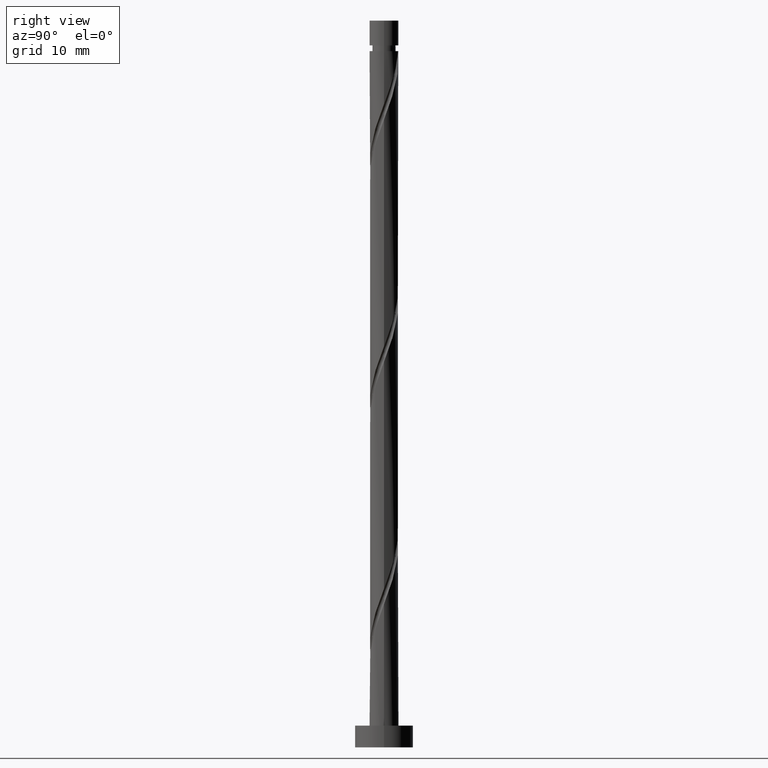
[diagram: clean part render]
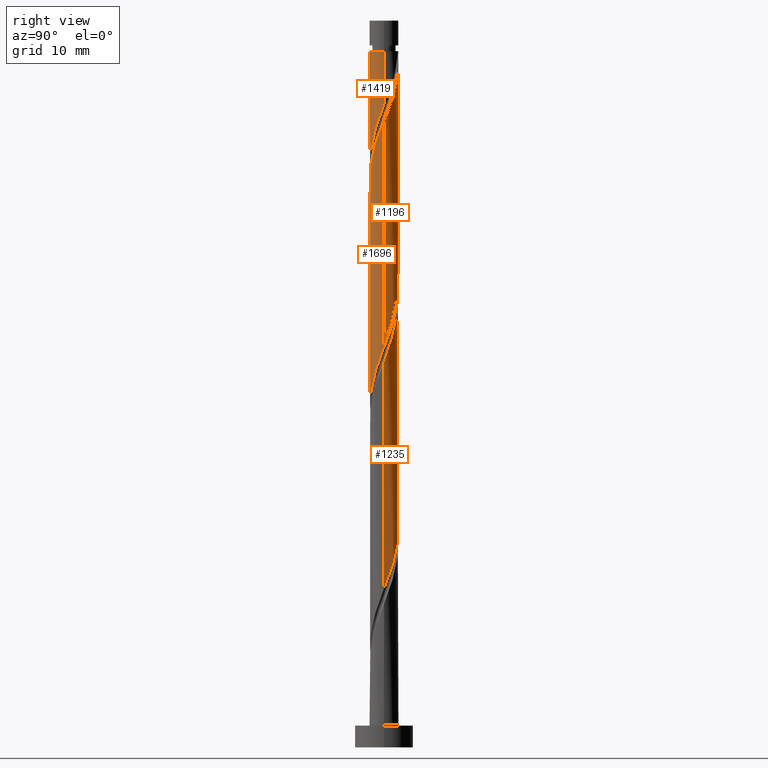
[diagram: same view with one multi-face feature highlighted, each face labeled with its STEP entity id]
A machine part, right view. The highlighted faces form ONE feature: a constant-radius fillet chain: 4 tangent blend faces with common blend radius 2 mm. The faces share edges in the B-rep.
Their STEP definitions:
[1] entity #1196 (Cylinder):
#26 = CARTESIAN_POINT ( 'NONE',  ( 1.672808912829666816, 1.127404036555501810, 89.54224661886334502 ) ) ;
#30 = VECTOR ( 'NONE', #1201, 1000.000000000000000 ) ;
#37 = CARTESIAN_POINT ( 'NONE',  ( -1.498412303996175643, 1.324673758792281664, 68.01446884108553093 ) ) ;
#52 = ORIENTED_EDGE ( 'NONE', *, *, #2171, .T. ) ;
#154 = ORIENTED_EDGE ( 'NONE', *, *, #562, .F. ) ;
#181 = CARTESIAN_POINT ( 'NONE',  ( -1.104504345536227339, 1.667354236715039129, 66.62557995219664519 ) ) ;
#185 = CARTESIAN_POINT ( 'NONE',  ( 1.790205940182201250, 0.8917189533347223973, 88.84780217441888794 ) ) ;
#257 = DIRECTION ( 'NONE',  ( -0.000000000000000000, -0.000000000000000000, -1.000000000000000000 ) ) ;
#277 = CARTESIAN_POINT ( 'NONE',  ( 1.127404036555502032, 1.672808912829662153, 60.37557995219666651 ) ) ;
#281 = VERTEX_POINT ( 'NONE', #1345 ) ;
#294 = CARTESIAN_POINT ( 'NONE',  ( 1.996223298870949403, 0.1228517034671582214, 55.51446884108553093 ) ) ;
#327 = CARTESIAN_POINT ( 'NONE',  ( 2.000000000000003997, 0.2010075630518381451, 86.92877299950919223 ) ) ;
#333 = CARTESIAN_POINT ( 'NONE',  ( -0.3856594865056701682, 1.980049565276632118, 64.54224661886333081 ) ) ;
#358 = CARTESIAN_POINT ( 'NONE',  ( -2.000000000000000000, 9.719959888353233432E-16, 71.85581327407338392 ) ) ;
#362 = CARTESIAN_POINT ( 'NONE',  ( 1.104504345536230003, 1.667354236715040683, 91.62557995219665941 ) ) ;
#366 = EDGE_CURVE ( 'NONE', #1438, #1998, #1549, .T. ) ;
#463 = CARTESIAN_POINT ( 'NONE',  ( -0.3979949748426477862, 1.960000000000003739, 95.79224661886335923 ) ) ;
#473 = CARTESIAN_POINT ( 'NONE',  ( -0.1228517034671590819, 1.996223298870949403, 63.84780217441886663 ) ) ;
#506 = CARTESIAN_POINT ( 'NONE',  ( 2.000000000000002665, 1.585101151023747839E-15, 86.39534663031993489 ) ) ;
#526 = EDGE_CURVE ( 'NONE', #1085, #599, #832, .T. ) ;
#527 = CARTESIAN_POINT ( 'NONE',  ( 0.8849929959097692089, 1.812764992401018072, 92.32002439664111648 ) ) ;
#534 = DIRECTION ( 'NONE',  ( -0.000000000000000000, -0.000000000000000000, -1.000000000000000000 ) ) ;
#562 = EDGE_CURVE ( 'NONE', #1998, #281, #1356, .T. ) ;
#599 = VERTEX_POINT ( 'NONE', #463 ) ;
#611 = CARTESIAN_POINT ( 'NONE',  ( 0.8917189533347235075, 1.790205940182197031, 61.07002439664109517 ) ) ;
#652 = CARTESIAN_POINT ( 'NONE',  ( 1.980049565276632118, 0.3856594865056690580, 56.20891328552999511 ) ) ;
#680 = CARTESIAN_POINT ( 'NONE',  ( 0.1228517034671612468, 1.996223298870952290, 94.40335772997443087 ) ) ;
#694 = LINE ( 'NONE', #1370, #30 ) ;
#702 = CARTESIAN_POINT ( 'NONE',  ( 1.498412303996179418, 1.324673758792282330, 90.23669106330775946 ) ) ;
#723 = DIRECTION ( 'NONE',  ( -0.000000000000000000, -0.000000000000000000, -1.000000000000000000 ) ) ;
#758 = CARTESIAN_POINT ( 'NONE',  ( 0.000000000000000000, 0.000000000000000000, 100.0000000000000000 ) ) ;
#832 =( BOUNDED_CURVE ( )  B_SPLINE_CURVE ( 2, ( #506, #327, #1723, #1014, #185, #26, #702, #2053, #362, #527, #1219, #1049, #680, #1896, #1874 ),
 .UNSPECIFIED., .F., .T. ) 
 B_SPLINE_CURVE_WITH_KNOTS ( ( 3, 2, 2, 2, 2, 2, 2, 3 ),
 ( 0.6795317669814461281, 0.6875000000000000000, 0.6979166666666667407, 0.7083333333333332593, 0.7187500000000001110, 0.7291666666666668517, 0.7395833333333333703, 0.7500000000000001110 ),
 .UNSPECIFIED. ) 
 CURVE ( )  GEOMETRIC_REPRESENTATION_ITEM ( )  RATIONAL_B_SPLINE_CURVE ( ( 0.9062941362546338420, 0.9031415850403379242, 0.9090909090909135015, 0.9013135103398318693, 0.9090909090909135015, 0.9013135103398318693, 0.9090909090909135015, 0.9013135103398318693, 0.9090909090909135015, 0.9013135103398318693, 0.9090909090909135015, 0.9013135103398318693, 0.9090909090909135015, 0.9013135103398318693, 0.9090909090909135015 ) ) 
 REPRESENTATION_ITEM ( '' )  );
#836 = EDGE_CURVE ( 'NONE', #1085, #281, #694, .T. ) ;
#855 = CARTESIAN_POINT ( 'NONE',  ( -2.000000000000000000, 0.000000000000000000, 100.0000000000000000 ) ) ;
#940 = DIRECTION ( 'NONE',  ( -1.000000000000000000, 0.000000000000000000, 0.000000000000000000 ) ) ;
#983 = CARTESIAN_POINT ( 'NONE',  ( 1.667354236715039351, 1.104504345536226895, 58.29224661886330949 ) ) ;
#1008 = CARTESIAN_POINT ( 'NONE',  ( 0.000000000000000000, 0.000000000000000000, 95.79224661886331660 ) ) ;
#1014 = CARTESIAN_POINT ( 'NONE',  ( 1.907602967534736571, 0.6560338701139438733, 88.15335772997445929 ) ) ;
#1021 = CARTESIAN_POINT ( 'NONE',  ( -1.672808912829663042, 1.127404036555501143, 68.70891328552998800 ) ) ;
#1030 = DIRECTION ( 'NONE',  ( -1.000000000000000000, 0.000000000000000000, 0.000000000000000000 ) ) ;
#1032 = CARTESIAN_POINT ( 'NONE',  ( -1.959999999999999520, 0.3979949748426478973, 70.79224661886333081 ) ) ;
#1037 = ORIENTED_EDGE ( 'NONE', *, *, #366, .F. ) ;
#1044 = CARTESIAN_POINT ( 'NONE',  ( -0.8849929959097663223, 1.812764992401015407, 65.93113550775220233 ) ) ;
#1049 = CARTESIAN_POINT ( 'NONE',  ( 0.3856594865056725552, 1.980049565276634560, 93.70891328552998800 ) ) ;
#1077 = CARTESIAN_POINT ( 'NONE',  ( -2.000000000000000000, 9.719959888353233432E-16, 71.85581327407338392 ) ) ;
#1085 = VERTEX_POINT ( 'NONE', #1749 ) ;
#1129 = CARTESIAN_POINT ( 'NONE',  ( 1.521943481029062406, 1.324015695162688022, 58.98669106330774525 ) ) ;
#1184 = CARTESIAN_POINT ( 'NONE',  ( -1.999999999999999112, 0.2010075630518458611, 71.32238690488409816 ) ) ;
#1196 = ADVANCED_FACE ( 'NONE', ( #1619 ), #1579, .T. ) ;
#1201 = DIRECTION ( 'NONE',  ( -0.000000000000000000, -0.000000000000000000, -1.000000000000000000 ) ) ;
#1219 = CARTESIAN_POINT ( 'NONE',  ( 0.6353262412077205212, 1.896407278838825761, 93.01446884108554514 ) ) ;
#1274 = VECTOR ( 'NONE', #723, 1000.000000000000000 ) ;
#1344 = AXIS2_PLACEMENT_3D ( 'NONE', #1008, #534, #1030 ) ;
#1345 = CARTESIAN_POINT ( 'NONE',  ( 2.000000000000000000, -2.138391175437711907E-15, 55.18914660740670541 ) ) ;
#1356 =( BOUNDED_CURVE ( )  B_SPLINE_CURVE ( 2, ( #358, #1184, #1032, #1864, #1526, #1021, #37, #1719, #181, #1044, #1570, #333, #473, #1665, #1684, #1480, #611, #277, #2150, #1129, #983, #2008, #1653, #652, #294, #1984, #1974 ),
 .UNSPECIFIED., .F., .T. ) 
 B_SPLINE_CURVE_WITH_KNOTS ( ( 3, 2, 2, 2, 2, 2, 2, 2, 2, 2, 2, 2, 2, 3 ),
 ( 0.4295317669814464057, 0.4375000000000000000, 0.4479166666666666852, 0.4583333333333333148, 0.4687500000000000000, 0.4791666666666666852, 0.4895833333333333148, 0.5000000000000000000, 0.5104166666666666297, 0.5208333333333333703, 0.5312500000000000000, 0.5416666666666666297, 0.5520833333333333703, 0.5545317669814463502 ),
 .UNSPECIFIED. ) 
 CURVE ( )  GEOMETRIC_REPRESENTATION_ITEM ( )  RATIONAL_B_SPLINE_CURVE ( ( 0.9062941362546279578, 0.9031415850403323731, 0.9090909090909075063, 0.9013135103398259851, 0.9090909090909075063, 0.9013135103398259851, 0.9090909090909075063, 0.9013135103398259851, 0.9090909090909075063, 0.9013135103398259851, 0.9090909090909075063, 0.9013135103398259851, 0.9090909090909075063, 0.9013135103398259851, 0.9090909090909075063, 0.9013135103398259851, 0.9090909090909075063, 0.9013135103398259851, 0.9090909090909075063, 0.9013135103398259851, 0.9090909090909075063, 0.9013135103398259851, 0.9090909090909075063, 0.9013135103398259851, 0.9090909090909075063, 0.9072628343904012294, 0.9062941362546277357 ) ) 
 REPRESENTATION_ITEM ( '' )  );
#1370 = CARTESIAN_POINT ( 'NONE',  ( 2.000000000000000000, 2.449293598294705921E-16, 100.0000000000000000 ) ) ;
#1438 = VERTEX_POINT ( 'NONE', #1994 ) ;
#1463 = EDGE_LOOP ( 'NONE', ( #1761, #1498, #154, #1037, #52 ) ) ;
#1480 = CARTESIAN_POINT ( 'NONE',  ( 0.6560338701139456496, 1.907602967534731464, 61.76446884108553093 ) ) ;
#1498 = ORIENTED_EDGE ( 'NONE', *, *, #836, .T. ) ;
#1526 = CARTESIAN_POINT ( 'NONE',  ( -1.790205940182197475, 0.8917189533347226194, 69.40335772997441666 ) ) ;
#1549 = LINE ( 'NONE', #855, #1274 ) ;
#1570 = CARTESIAN_POINT ( 'NONE',  ( -0.6353262412077180787, 1.896407278838823762, 65.23669106330774525 ) ) ;
#1579 = CYLINDRICAL_SURFACE ( 'NONE', #2119, 2.000000000000000000 ) ;
#1619 = FACE_OUTER_BOUND ( 'NONE', #1463, .T. ) ;
#1653 = CARTESIAN_POINT ( 'NONE',  ( 1.896407278838823762, 0.6353262412077168575, 56.90335772997442376 ) ) ;
#1665 = CARTESIAN_POINT ( 'NONE',  ( 0.1399560795713520323, 2.012397032465266911, 63.15335772997442376 ) ) ;
#1684 = CARTESIAN_POINT ( 'NONE',  ( 0.3979949748426483414, 1.959999999999999520, 62.45891328552998800 ) ) ;
#1719 = CARTESIAN_POINT ( 'NONE',  ( -1.324015695162688244, 1.521943481029062406, 67.32002439664110227 ) ) ;
#1723 = CARTESIAN_POINT ( 'NONE',  ( 1.960000000000003073, 0.3979949748426477862, 87.45891328552998800 ) ) ;
#1749 = CARTESIAN_POINT ( 'NONE',  ( 2.000000000000002665, 1.585101151023747839E-15, 86.39534663031993489 ) ) ;
#1761 = ORIENTED_EDGE ( 'NONE', *, *, #526, .F. ) ;
#1864 = CARTESIAN_POINT ( 'NONE',  ( -1.907602967534731908, 0.6560338701139436512, 70.09780217441885952 ) ) ;
#1874 = CARTESIAN_POINT ( 'NONE',  ( -0.3979949748426477862, 1.960000000000003739, 95.79224661886335923 ) ) ;
#1896 = CARTESIAN_POINT ( 'NONE',  ( -0.1399560795713526984, 2.012397032465270907, 95.09780217441888794 ) ) ;
#1974 = CARTESIAN_POINT ( 'NONE',  ( 2.000000000000000000, -2.138391175437711907E-15, 55.18914660740670541 ) ) ;
#1984 = CARTESIAN_POINT ( 'NONE',  ( 2.000000000000000000, 0.06148390331534540898, 55.35231029543485448 ) ) ;
#1994 = CARTESIAN_POINT ( 'NONE',  ( -2.000000000000000888, 0.000000000000000000, 95.79224661886331660 ) ) ;
#1998 = VERTEX_POINT ( 'NONE', #1077 ) ;
#2008 = CARTESIAN_POINT ( 'NONE',  ( 1.812764992401016073, 0.8849929959097645460, 57.59780217441887373 ) ) ;
#2053 = CARTESIAN_POINT ( 'NONE',  ( 1.324015695162692907, 1.521943481029063516, 90.93113550775223075 ) ) ;
#2119 = AXIS2_PLACEMENT_3D ( 'NONE', #758, #257, #940 ) ;
#2150 = CARTESIAN_POINT ( 'NONE',  ( 1.324673758792282108, 1.498412303996175199, 59.68113550775219522 ) ) ;
#2156 = CIRCLE ( 'NONE', #1344, 2.000000000000000888 ) ;
#2171 = EDGE_CURVE ( 'NONE', #1438, #599, #2156, .T. ) ;
[2] entity #1419 (Cylinder):
#16 = VERTEX_POINT ( 'NONE', #318 ) ;
#119 = LINE ( 'NONE', #1162, #1241 ) ;
#149 = CARTESIAN_POINT ( 'NONE',  ( 1.790205940182197031, -0.8917189533347235075, 86.07002439664110227 ) ) ;
#156 = CARTESIAN_POINT ( 'NONE',  ( -1.127404036555501143, -1.672808912829663042, 77.04224661886331660 ) ) ;
#190 = CARTESIAN_POINT ( 'NONE',  ( -1.996223298870949403, -0.1228517034671588737, 72.18113550775220233 ) ) ;
#314 = DIRECTION ( 'NONE',  ( -1.000000000000000000, 0.000000000000000000, 0.000000000000000000 ) ) ;
#318 = CARTESIAN_POINT ( 'NONE',  ( 2.000000000000000888, 2.449293598294706907E-16, 95.79224661886331660 ) ) ;
#324 = CARTESIAN_POINT ( 'NONE',  ( 0.8849929959097655452, -1.812764992401015629, 82.59780217441887373 ) ) ;
#342 = CIRCLE ( 'NONE', #1205, 2.000000000000000888 ) ;
#356 = CARTESIAN_POINT ( 'NONE',  ( -1.896407278838823762, -0.6353262412077178567, 73.57002439664108806 ) ) ;
#366 = EDGE_CURVE ( 'NONE', #1438, #1998, #1549, .T. ) ;
#468 = VERTEX_POINT ( 'NONE', #1392 ) ;
#483 = CARTESIAN_POINT ( 'NONE',  ( -0.1399560795713525874, -2.012397032465267355, 79.82002439664108806 ) ) ;
#603 = EDGE_CURVE ( 'NONE', #16, #468, #119, .T. ) ;
#637 = CARTESIAN_POINT ( 'NONE',  ( 0.000000000000000000, 0.000000000000000000, 100.0000000000000000 ) ) ;
#641 = EDGE_CURVE ( 'NONE', #16, #1438, #342, .T. ) ;
#660 = CARTESIAN_POINT ( 'NONE',  ( 0.3856594865056690580, -1.980049565276632118, 81.20891328552998800 ) ) ;
#723 = DIRECTION ( 'NONE',  ( -0.000000000000000000, -0.000000000000000000, -1.000000000000000000 ) ) ;
#731 = CARTESIAN_POINT ( 'NONE',  ( -1.980049565276632118, -0.3856594865056695021, 72.87557995219664519 ) ) ;
#765 = ORIENTED_EDGE ( 'NONE', *, *, #603, .F. ) ;
#791 = DIRECTION ( 'NONE',  ( -0.000000000000000000, -0.000000000000000000, -1.000000000000000000 ) ) ;
#819 = ORIENTED_EDGE ( 'NONE', *, *, #366, .T. ) ;
#823 = DIRECTION ( 'NONE',  ( -0.000000000000000000, -0.000000000000000000, -1.000000000000000000 ) ) ;
#824 = CARTESIAN_POINT ( 'NONE',  ( 1.498412303996175421, -1.324673758792282108, 84.68113550775218812 ) ) ;
#830 = CYLINDRICAL_SURFACE ( 'NONE', #2181, 2.000000000000000000 ) ;
#833 = CARTESIAN_POINT ( 'NONE',  ( -1.324673758792282108, -1.498412303996175421, 76.34780217441884531 ) ) ;
#840 = CARTESIAN_POINT ( 'NONE',  ( 1.907602967534731464, -0.6560338701139454276, 86.76446884108553093 ) ) ;
#855 = CARTESIAN_POINT ( 'NONE',  ( -2.000000000000000000, 0.000000000000000000, 100.0000000000000000 ) ) ;
#927 = ORIENTED_EDGE ( 'NONE', *, *, #641, .T. ) ;
#966 =( BOUNDED_CURVE ( )  B_SPLINE_CURVE ( 2, ( #995, #1685, #1342, #840, #149, #1504, #824, #1675, #1019, #324, #2167, #660, #1335, #483, #1175, #1004, #1694, #156, #833, #1933, #1544, #1212, #356, #731, #190, #1386, #2059 ),
 .UNSPECIFIED., .F., .T. ) 
 B_SPLINE_CURVE_WITH_KNOTS ( ( 3, 2, 2, 2, 2, 2, 2, 2, 2, 2, 2, 2, 2, 3 ),
 ( 0.3045317669814464612, 0.3125000000000000000, 0.3229166666666666852, 0.3333333333333333148, 0.3437500000000000000, 0.3541666666666666852, 0.3645833333333333148, 0.3750000000000000000, 0.3854166666666666852, 0.3958333333333333148, 0.4062500000000000000, 0.4166666666666666852, 0.4270833333333333148, 0.4295317669814464057 ),
 .UNSPECIFIED. ) 
 CURVE ( )  GEOMETRIC_REPRESENTATION_ITEM ( )  RATIONAL_B_SPLINE_CURVE ( ( 0.9062941362546278468, 0.9031415850403323731, 0.9090909090909075063, 0.9013135103398259851, 0.9090909090909075063, 0.9013135103398259851, 0.9090909090909075063, 0.9013135103398259851, 0.9090909090909075063, 0.9013135103398259851, 0.9090909090909075063, 0.9013135103398259851, 0.9090909090909075063, 0.9013135103398259851, 0.9090909090909075063, 0.9013135103398259851, 0.9090909090909075063, 0.9013135103398259851, 0.9090909090909075063, 0.9013135103398259851, 0.9090909090909075063, 0.9013135103398259851, 0.9090909090909075063, 0.9013135103398259851, 0.9090909090909075063, 0.9072628343904012294, 0.9062941362546279578 ) ) 
 REPRESENTATION_ITEM ( '' )  );
#995 = CARTESIAN_POINT ( 'NONE',  ( 2.000000000000000000, 1.315933031038591503E-15, 88.52247994074002690 ) ) ;
#1004 = CARTESIAN_POINT ( 'NONE',  ( -0.6560338701139445394, -1.907602967534731908, 78.43113550775220233 ) ) ;
#1019 = CARTESIAN_POINT ( 'NONE',  ( 1.104504345536226451, -1.667354236715039795, 83.29224661886330239 ) ) ;
#1077 = CARTESIAN_POINT ( 'NONE',  ( -2.000000000000000000, 9.719959888353233432E-16, 71.85581327407338392 ) ) ;
#1162 = CARTESIAN_POINT ( 'NONE',  ( 2.000000000000000000, 2.449293598294705921E-16, 100.0000000000000000 ) ) ;
#1175 = CARTESIAN_POINT ( 'NONE',  ( -0.3979949748426480638, -1.959999999999999520, 79.12557995219663098 ) ) ;
#1205 = AXIS2_PLACEMENT_3D ( 'NONE', #1834, #791, #314 ) ;
#1212 = CARTESIAN_POINT ( 'NONE',  ( -1.812764992401015629, -0.8849929959097655452, 74.26446884108553093 ) ) ;
#1241 = VECTOR ( 'NONE', #823, 1000.000000000000000 ) ;
#1274 = VECTOR ( 'NONE', #723, 1000.000000000000000 ) ;
#1314 = DIRECTION ( 'NONE',  ( -1.000000000000000000, 0.000000000000000000, 0.000000000000000000 ) ) ;
#1335 = CARTESIAN_POINT ( 'NONE',  ( 0.1228517034671583186, -1.996223298870949403, 80.51446884108550250 ) ) ;
#1342 = CARTESIAN_POINT ( 'NONE',  ( 1.959999999999999520, -0.3979949748426482303, 87.45891328552997379 ) ) ;
#1386 = CARTESIAN_POINT ( 'NONE',  ( -2.000000000000000000, -0.06148390331534351466, 72.01897696210153299 ) ) ;
#1392 = CARTESIAN_POINT ( 'NONE',  ( 2.000000000000000000, 1.315933031038591503E-15, 88.52247994074002690 ) ) ;
#1419 = ADVANCED_FACE ( 'NONE', ( #1692 ), #830, .T. ) ;
#1438 = VERTEX_POINT ( 'NONE', #1994 ) ;
#1449 = ORIENTED_EDGE ( 'NONE', *, *, #1641, .F. ) ;
#1504 = CARTESIAN_POINT ( 'NONE',  ( 1.672808912829662598, -1.127404036555501810, 85.37557995219661677 ) ) ;
#1509 = DIRECTION ( 'NONE',  ( -0.000000000000000000, -0.000000000000000000, -1.000000000000000000 ) ) ;
#1544 = CARTESIAN_POINT ( 'NONE',  ( -1.667354236715039129, -1.104504345536226895, 74.95891328552995958 ) ) ;
#1549 = LINE ( 'NONE', #855, #1274 ) ;
#1641 = EDGE_CURVE ( 'NONE', #468, #1998, #966, .T. ) ;
#1675 = CARTESIAN_POINT ( 'NONE',  ( 1.324015695162688022, -1.521943481029062406, 83.98669106330773104 ) ) ;
#1685 = CARTESIAN_POINT ( 'NONE',  ( 1.999999999999998668, -0.2010075630518474987, 87.98905357155076956 ) ) ;
#1692 = FACE_OUTER_BOUND ( 'NONE', #1839, .T. ) ;
#1694 = CARTESIAN_POINT ( 'NONE',  ( -0.8917189533347227304, -1.790205940182197475, 77.73669106330774525 ) ) ;
#1834 = CARTESIAN_POINT ( 'NONE',  ( 0.000000000000000000, 0.000000000000000000, 95.79224661886331660 ) ) ;
#1839 = EDGE_LOOP ( 'NONE', ( #765, #927, #819, #1449 ) ) ;
#1933 = CARTESIAN_POINT ( 'NONE',  ( -1.521943481029062406, -1.324015695162688244, 75.65335772997443087 ) ) ;
#1994 = CARTESIAN_POINT ( 'NONE',  ( -2.000000000000000888, 0.000000000000000000, 95.79224661886331660 ) ) ;
#1998 = VERTEX_POINT ( 'NONE', #1077 ) ;
#2059 = CARTESIAN_POINT ( 'NONE',  ( -2.000000000000000000, 9.719959888353233432E-16, 71.85581327407338392 ) ) ;
#2167 = CARTESIAN_POINT ( 'NONE',  ( 0.6353262412077173016, -1.896407278838823762, 81.90335772997443087 ) ) ;
#2181 = AXIS2_PLACEMENT_3D ( 'NONE', #637, #1509, #1314 ) ;
[3] entity #1696 (Cylinder):
#30 = VECTOR ( 'NONE', #1201, 1000.000000000000000 ) ;
#64 =( BOUNDED_CURVE ( )  B_SPLINE_CURVE ( 2, ( #466, #1156, #283, #1307, #1133, #2170, #826, #1484, #1460, #662, #614, #2002, #158, #308, #2153, #1837, #438, #997, #1295, #974, #478, #818, #1655, #1668, #151, #2010, #1507 ),
 .UNSPECIFIED., .F., .T. ) 
 B_SPLINE_CURVE_WITH_KNOTS ( ( 3, 2, 2, 2, 2, 2, 2, 2, 2, 2, 2, 2, 2, 3 ),
 ( 0.5545317669814463502, 0.5625000000000000000, 0.5729166666666667407, 0.5833333333333332593, 0.5937500000000000000, 0.6041666666666667407, 0.6145833333333332593, 0.6250000000000000000, 0.6354166666666667407, 0.6458333333333332593, 0.6562500000000000000, 0.6666666666666667407, 0.6770833333333332593, 0.6795317669814461281 ),
 .UNSPECIFIED. ) 
 CURVE ( )  GEOMETRIC_REPRESENTATION_ITEM ( )  RATIONAL_B_SPLINE_CURVE ( ( 0.9062941362546338420, 0.9031415850403381462, 0.9090909090909135015, 0.9013135103398318693, 0.9090909090909135015, 0.9013135103398318693, 0.9090909090909135015, 0.9013135103398318693, 0.9090909090909135015, 0.9013135103398318693, 0.9090909090909135015, 0.9013135103398318693, 0.9090909090909135015, 0.9013135103398318693, 0.9090909090909135015, 0.9013135103398318693, 0.9090909090909135015, 0.9013135103398318693, 0.9090909090909135015, 0.9013135103398318693, 0.9090909090909135015, 0.9013135103398318693, 0.9090909090909135015, 0.9013135103398318693, 0.9090909090909135015, 0.9072628343904072246, 0.9062941362546338420 ) ) 
 REPRESENTATION_ITEM ( '' )  );
#99 = CARTESIAN_POINT ( 'NONE',  ( 1.959999999999999520, -0.3979949748426482303, 54.12557995219663809 ) ) ;
#111 = EDGE_CURVE ( 'NONE', #1475, #1085, #64, .T. ) ;
#113 = CARTESIAN_POINT ( 'NONE',  ( -1.996223298870949403, -0.1228517034671588737, 38.84780217441885242 ) ) ;
#124 = CARTESIAN_POINT ( 'NONE',  ( 0.6353262412077173016, -1.896407278838823762, 48.57002439664108095 ) ) ;
#144 = ORIENTED_EDGE ( 'NONE', *, *, #836, .F. ) ;
#151 = CARTESIAN_POINT ( 'NONE',  ( 1.996223298870952290, -0.1228517034671611219, 86.07002439664111648 ) ) ;
#158 = CARTESIAN_POINT ( 'NONE',  ( -0.1228517034671601366, -1.996223298870952290, 77.73669106330777367 ) ) ;
#281 = VERTEX_POINT ( 'NONE', #1345 ) ;
#283 = CARTESIAN_POINT ( 'NONE',  ( -1.960000000000003073, -0.3979949748426481748, 70.79224661886333081 ) ) ;
#287 = CARTESIAN_POINT ( 'NONE',  ( 2.000000000000000000, -2.138391175437711907E-15, 55.18914660740670541 ) ) ;
#308 = CARTESIAN_POINT ( 'NONE',  ( 0.1399560795713511441, -2.012397032465270907, 78.43113550775224496 ) ) ;
#428 = CARTESIAN_POINT ( 'NONE',  ( 1.104504345536226451, -1.667354236715039795, 49.95891328552997379 ) ) ;
#438 = CARTESIAN_POINT ( 'NONE',  ( 0.8917189533347228414, -1.790205940182201250, 80.51446884108555935 ) ) ;
#457 = CARTESIAN_POINT ( 'NONE',  ( 1.907602967534731464, -0.6560338701139454276, 53.43113550775220943 ) ) ;
#466 = CARTESIAN_POINT ( 'NONE',  ( -2.000000000000003109, -2.243067666543039215E-17, 69.72867996365327770 ) ) ;
#478 = CARTESIAN_POINT ( 'NONE',  ( 1.667354236715040017, -1.104504345536230225, 83.29224661886331660 ) ) ;
#480 = CARTESIAN_POINT ( 'NONE',  ( -1.521943481029062406, -1.324015695162688244, 42.32002439664110227 ) ) ;
#501 = CARTESIAN_POINT ( 'NONE',  ( -2.000000000000000000, 7.230154778490445318E-15, 38.52247994074001269 ) ) ;
#604 = CARTESIAN_POINT ( 'NONE',  ( -1.127404036555501143, -1.672808912829663042, 43.70891328552997379 ) ) ;
#612 = CARTESIAN_POINT ( 'NONE',  ( -2.000000000000003109, -2.243067666543039215E-17, 69.72867996365327770 ) ) ;
#614 = CARTESIAN_POINT ( 'NONE',  ( -0.6353262412077205212, -1.896407278838826205, 76.34780217441888794 ) ) ;
#619 = CARTESIAN_POINT ( 'NONE',  ( 1.999999999999999556, -0.2010075630518437240, 54.65572023821744096 ) ) ;
#634 = CARTESIAN_POINT ( 'NONE',  ( 0.1228517034671583186, -1.996223298870949403, 47.18113550775220943 ) ) ;
#647 = CARTESIAN_POINT ( 'NONE',  ( 1.498412303996175421, -1.324673758792282108, 51.34780217441885952 ) ) ;
#662 = CARTESIAN_POINT ( 'NONE',  ( -0.8849929959097687648, -1.812764992401018294, 75.65335772997441666 ) ) ;
#685 = ORIENTED_EDGE ( 'NONE', *, *, #1025, .T. ) ;
#694 = LINE ( 'NONE', #1370, #30 ) ;
#769 = CARTESIAN_POINT ( 'NONE',  ( -1.667354236715039129, -1.104504345536226895, 41.62557995219665941 ) ) ;
#783 = CARTESIAN_POINT ( 'NONE',  ( -2.000000000000000000, 7.230154778490445318E-15, 38.52247994074001980 ) ) ;
#795 = CARTESIAN_POINT ( 'NONE',  ( -0.6560338701139445394, -1.907602967534731908, 45.09780217441885242 ) ) ;
#801 = CARTESIAN_POINT ( 'NONE',  ( 0.000000000000000000, 0.000000000000000000, 100.0000000000000000 ) ) ;
#818 = CARTESIAN_POINT ( 'NONE',  ( 1.812764992401018072, -0.8849929959097688759, 83.98669106330775946 ) ) ;
#826 = CARTESIAN_POINT ( 'NONE',  ( -1.498412303996178307, -1.324673758792282996, 73.57002439664108806 ) ) ;
#836 = EDGE_CURVE ( 'NONE', #1085, #281, #694, .T. ) ;
#915 = ORIENTED_EDGE ( 'NONE', *, *, #111, .F. ) ;
#951 = CARTESIAN_POINT ( 'NONE',  ( -2.000000000000000444, -0.06148390331534039910, 38.68564362876817597 ) ) ;
#974 = CARTESIAN_POINT ( 'NONE',  ( 1.521943481029063960, -1.324015695162691575, 82.59780217441885952 ) ) ;
#989 = CARTESIAN_POINT ( 'NONE',  ( 0.8849929959097655452, -1.812764992401015629, 49.26446884108554514 ) ) ;
#997 = CARTESIAN_POINT ( 'NONE',  ( 1.127404036555502032, -1.672808912829666816, 81.20891328552998800 ) ) ;
#1025 = EDGE_CURVE ( 'NONE', #1475, #1614, #1605, .T. ) ;
#1064 = CARTESIAN_POINT ( 'NONE',  ( -2.000000000000000000, 0.000000000000000000, 100.0000000000000000 ) ) ;
#1085 = VERTEX_POINT ( 'NONE', #1749 ) ;
#1110 = DIRECTION ( 'NONE',  ( -0.000000000000000000, -0.000000000000000000, -1.000000000000000000 ) ) ;
#1123 = CARTESIAN_POINT ( 'NONE',  ( -1.980049565276632118, -0.3856594865056695021, 39.54224661886330239 ) ) ;
#1132 = EDGE_LOOP ( 'NONE', ( #144, #915, #685, #1644 ) ) ;
#1133 = CARTESIAN_POINT ( 'NONE',  ( -1.790205940182200361, -0.8917189533347232855, 72.18113550775220233 ) ) ;
#1156 = CARTESIAN_POINT ( 'NONE',  ( -2.000000000000002665, -0.2010075630518449452, 70.26210633284253504 ) ) ;
#1201 = DIRECTION ( 'NONE',  ( -0.000000000000000000, -0.000000000000000000, -1.000000000000000000 ) ) ;
#1285 = CARTESIAN_POINT ( 'NONE',  ( -1.896407278838823762, -0.6353262412077178567, 40.23669106330775236 ) ) ;
#1295 = CARTESIAN_POINT ( 'NONE',  ( 1.324673758792282996, -1.498412303996178752, 81.90335772997443087 ) ) ;
#1299 = CARTESIAN_POINT ( 'NONE',  ( -0.8917189533347227304, -1.790205940182197475, 44.40335772997440955 ) ) ;
#1307 = CARTESIAN_POINT ( 'NONE',  ( -1.907602967534736571, -0.6560338701139440953, 71.48669106330777367 ) ) ;
#1330 = CARTESIAN_POINT ( 'NONE',  ( -0.1399560795713525874, -2.012397032465267355, 46.48669106330776657 ) ) ;
#1345 = CARTESIAN_POINT ( 'NONE',  ( 2.000000000000000000, -2.138391175437711907E-15, 55.18914660740670541 ) ) ;
#1370 = CARTESIAN_POINT ( 'NONE',  ( 2.000000000000000000, 2.449293598294705921E-16, 100.0000000000000000 ) ) ;
#1429 = DIRECTION ( 'NONE',  ( -1.000000000000000000, 0.000000000000000000, 0.000000000000000000 ) ) ;
#1454 = FACE_OUTER_BOUND ( 'NONE', #1132, .T. ) ;
#1460 = CARTESIAN_POINT ( 'NONE',  ( -1.104504345536229559, -1.667354236715040905, 74.95891328552998800 ) ) ;
#1466 = CARTESIAN_POINT ( 'NONE',  ( 0.3856594865056690580, -1.980049565276632118, 47.87557995219663809 ) ) ;
#1475 = VERTEX_POINT ( 'NONE', #612 ) ;
#1484 = CARTESIAN_POINT ( 'NONE',  ( -1.324015695162691575, -1.521943481029063960, 74.26446884108555935 ) ) ;
#1507 = CARTESIAN_POINT ( 'NONE',  ( 2.000000000000002665, 1.585101151023747839E-15, 86.39534663031993489 ) ) ;
#1605 = LINE ( 'NONE', #1064, #1915 ) ;
#1614 = VERTEX_POINT ( 'NONE', #501 ) ;
#1634 = CARTESIAN_POINT ( 'NONE',  ( 1.672808912829662598, -1.127404036555501810, 52.04224661886330239 ) ) ;
#1644 = ORIENTED_EDGE ( 'NONE', *, *, #2066, .F. ) ;
#1655 = CARTESIAN_POINT ( 'NONE',  ( 1.896407278838826205, -0.6353262412077205212, 84.68113550775221654 ) ) ;
#1658 = CARTESIAN_POINT ( 'NONE',  ( 1.790205940182197031, -0.8917189533347235075, 52.73669106330775946 ) ) ;
#1663 = CYLINDRICAL_SURFACE ( 'NONE', #1708, 2.000000000000000000 ) ;
#1668 = CARTESIAN_POINT ( 'NONE',  ( 1.980049565276634560, -0.3856594865056723886, 85.37557995219667362 ) ) ;
#1696 = ADVANCED_FACE ( 'NONE', ( #1454 ), #1663, .T. ) ;
#1708 = AXIS2_PLACEMENT_3D ( 'NONE', #801, #1957, #1429 ) ;
#1749 = CARTESIAN_POINT ( 'NONE',  ( 2.000000000000002665, 1.585101151023747839E-15, 86.39534663031993489 ) ) ;
#1803 = CARTESIAN_POINT ( 'NONE',  ( -0.3979949748426480638, -1.959999999999999520, 45.79224661886330239 ) ) ;
#1837 = CARTESIAN_POINT ( 'NONE',  ( 0.6560338701139438733, -1.907602967534736571, 79.82002439664111648 ) ) ;
#1840 = CARTESIAN_POINT ( 'NONE',  ( 1.324015695162688022, -1.521943481029062406, 50.65335772997443087 ) ) ;
#1915 = VECTOR ( 'NONE', #1110, 1000.000000000000000 ) ;
#1955 =( BOUNDED_CURVE ( )  B_SPLINE_CURVE ( 2, ( #287, #619, #99, #457, #1658, #1634, #647, #1840, #428, #989, #124, #1466, #634, #1330, #1803, #795, #1299, #604, #2004, #480, #769, #2125, #1285, #1123, #113, #951, #783 ),
 .UNSPECIFIED., .F., .T. ) 
 B_SPLINE_CURVE_WITH_KNOTS ( ( 3, 2, 2, 2, 2, 2, 2, 2, 2, 2, 2, 2, 2, 3 ),
 ( 0.5545317669814463502, 0.5625000000000000000, 0.5729166666666666297, 0.5833333333333333703, 0.5937500000000000000, 0.6041666666666666297, 0.6145833333333333703, 0.6250000000000000000, 0.6354166666666666297, 0.6458333333333333703, 0.6562500000000000000, 0.6666666666666666297, 0.6770833333333333703, 0.6795317669814465722 ),
 .UNSPECIFIED. ) 
 CURVE ( )  GEOMETRIC_REPRESENTATION_ITEM ( )  RATIONAL_B_SPLINE_CURVE ( ( 0.9062941362546277357, 0.9031415850403321510, 0.9090909090909075063, 0.9013135103398259851, 0.9090909090909075063, 0.9013135103398259851, 0.9090909090909075063, 0.9013135103398259851, 0.9090909090909075063, 0.9013135103398259851, 0.9090909090909075063, 0.9013135103398259851, 0.9090909090909075063, 0.9013135103398259851, 0.9090909090909075063, 0.9013135103398259851, 0.9090909090909075063, 0.9013135103398259851, 0.9090909090909075063, 0.9013135103398259851, 0.9090909090909075063, 0.9013135103398259851, 0.9090909090909075063, 0.9013135103398259851, 0.9090909090909075063, 0.9072628343904010073, 0.9062941362546275137 ) ) 
 REPRESENTATION_ITEM ( '' )  );
#1957 = DIRECTION ( 'NONE',  ( -0.000000000000000000, -0.000000000000000000, -1.000000000000000000 ) ) ;
#2002 = CARTESIAN_POINT ( 'NONE',  ( -0.3856594865056713894, -1.980049565276635226, 77.04224661886333081 ) ) ;
#2004 = CARTESIAN_POINT ( 'NONE',  ( -1.324673758792282108, -1.498412303996175421, 43.01446884108554514 ) ) ;
#2010 = CARTESIAN_POINT ( 'NONE',  ( 2.000000000000002665, -0.06148390331535170950, 86.23218294229177161 ) ) ;
#2066 = EDGE_CURVE ( 'NONE', #281, #1614, #1955, .T. ) ;
#2125 = CARTESIAN_POINT ( 'NONE',  ( -1.812764992401015629, -0.8849929959097655452, 40.93113550775219522 ) ) ;
#2153 = CARTESIAN_POINT ( 'NONE',  ( 0.3979949748426478973, -1.960000000000003073, 79.12557995219667362 ) ) ;
#2170 = CARTESIAN_POINT ( 'NONE',  ( -1.672808912829666372, -1.127404036555502476, 72.87557995219665941 ) ) ;
[4] entity #1235 (Cylinder):
#8 = CARTESIAN_POINT ( 'NONE',  ( -0.8849929959097663223, 1.812764992401015407, 32.59780217441887373 ) ) ;
#17 = CARTESIAN_POINT ( 'NONE',  ( 2.000000000000000000, -2.138391175437711907E-15, 21.85581327407338037 ) ) ;
#29 = CARTESIAN_POINT ( 'NONE',  ( -1.999999999999998668, 0.2010075630518489420, 37.98905357155077667 ) ) ;
#53 = DIRECTION ( 'NONE',  ( -1.000000000000000000, 0.000000000000000000, 0.000000000000000000 ) ) ;
#58 = CARTESIAN_POINT ( 'NONE',  ( 1.960000000000003073, 0.3979949748426477862, 54.12557995219665941 ) ) ;
#79 = CARTESIAN_POINT ( 'NONE',  ( -0.3979949748426477307, 1.960000000000003073, 62.45891328552999511 ) ) ;
#93 = CARTESIAN_POINT ( 'NONE',  ( -1.812764992401018516, 0.8849929959097683208, 67.32002439664110227 ) ) ;
#103 = CARTESIAN_POINT ( 'NONE',  ( 0.8849929959097692089, 1.812764992401018072, 58.98669106330776657 ) ) ;
#123 = VERTEX_POINT ( 'NONE', #793 ) ;
#128 = CARTESIAN_POINT ( 'NONE',  ( -1.324673758792282996, 1.498412303996178307, 65.23669106330775946 ) ) ;
#161 = CARTESIAN_POINT ( 'NONE',  ( 2.000000000000000000, -2.138391175437711907E-15, 21.85581327407338037 ) ) ;
#177 = CARTESIAN_POINT ( 'NONE',  ( -0.6353262412077180787, 1.896407278838823762, 31.90335772997441310 ) ) ;
#187 = CARTESIAN_POINT ( 'NONE',  ( 1.812764992401016073, 0.8849929959097645460, 24.26446884108553448 ) ) ;
#199 = CARTESIAN_POINT ( 'NONE',  ( 1.896407278838823762, 0.6353262412077168575, 23.57002439664108806 ) ) ;
#235 = AXIS2_PLACEMENT_3D ( 'NONE', #2065, #1930, #53 ) ;
#262 = CARTESIAN_POINT ( 'NONE',  ( -1.127404036555502476, 1.672808912829666150, 64.54224661886334502 ) ) ;
#274 = CARTESIAN_POINT ( 'NONE',  ( 1.498412303996179418, 1.324673758792282330, 56.90335772997443797 ) ) ;
#320 = EDGE_LOOP ( 'NONE', ( #415, #757, #1329, #1532 ) ) ;
#329 = CARTESIAN_POINT ( 'NONE',  ( 1.667354236715039351, 1.104504345536226895, 24.95891328552998800 ) ) ;
#353 = CARTESIAN_POINT ( 'NONE',  ( 2.000000000000000000, 0.06148390331534540898, 22.01897696210152944 ) ) ;
#409 = CARTESIAN_POINT ( 'NONE',  ( -1.896407278838826427, 0.6353262412077199661, 68.01446884108554514 ) ) ;
#415 = ORIENTED_EDGE ( 'NONE', *, *, #1672, .F. ) ;
#489 = CARTESIAN_POINT ( 'NONE',  ( 1.127404036555502032, 1.672808912829662153, 27.04224661886331305 ) ) ;
#501 = CARTESIAN_POINT ( 'NONE',  ( -2.000000000000000000, 7.230154778490445318E-15, 38.52247994074001269 ) ) ;
#548 = CARTESIAN_POINT ( 'NONE',  ( 2.000000000000003553, 0.2010075630518415590, 53.59543966617586364 ) ) ;
#583 = CARTESIAN_POINT ( 'NONE',  ( 1.672808912829666816, 1.127404036555501810, 56.20891328552999511 ) ) ;
#595 = CARTESIAN_POINT ( 'NONE',  ( -0.6560338701139443174, 1.907602967534735461, 63.15335772997443797 ) ) ;
#608 = CARTESIAN_POINT ( 'NONE',  ( 1.907602967534736571, 0.6560338701139438733, 54.82002439664110938 ) ) ;
#612 = CARTESIAN_POINT ( 'NONE',  ( -2.000000000000003109, -2.243067666543039215E-17, 69.72867996365327770 ) ) ;
#624 = CARTESIAN_POINT ( 'NONE',  ( -2.000000000000003109, -2.243067666543039215E-17, 69.72867996365327770 ) ) ;
#667 = CARTESIAN_POINT ( 'NONE',  ( -1.907602967534731908, 0.6560338701139436512, 36.76446884108553093 ) ) ;
#686 = CARTESIAN_POINT ( 'NONE',  ( 1.324673758792282108, 1.498412303996175199, 26.34780217441886663 ) ) ;
#726 = EDGE_CURVE ( 'NONE', #123, #937, #1181, .T. ) ;
#757 = ORIENTED_EDGE ( 'NONE', *, *, #726, .T. ) ;
#761 = CARTESIAN_POINT ( 'NONE',  ( -2.000000000000002665, 0.06148390331534489550, 69.56551627562511442 ) ) ;
#788 = CARTESIAN_POINT ( 'NONE',  ( 1.790205940182201250, 0.8917189533347223973, 55.51446884108554514 ) ) ;
#793 = CARTESIAN_POINT ( 'NONE',  ( 2.000000000000002665, -5.532900244139497697E-16, 53.06201329698659208 ) ) ;
#798 = EDGE_CURVE ( 'NONE', #1614, #937, #1059, .T. ) ;
#850 = CARTESIAN_POINT ( 'NONE',  ( 0.3979949748426483414, 1.959999999999999520, 29.12557995219664519 ) ) ;
#857 = CARTESIAN_POINT ( 'NONE',  ( 2.000000000000000000, 2.449293598294705921E-16, 100.0000000000000000 ) ) ;
#933 = CARTESIAN_POINT ( 'NONE',  ( 1.104504345536230003, 1.667354236715040683, 58.29224661886334502 ) ) ;
#937 = VERTEX_POINT ( 'NONE', #161 ) ;
#994 = VECTOR ( 'NONE', #1738, 1000.000000000000000 ) ;
#1025 = EDGE_CURVE ( 'NONE', #1475, #1614, #1605, .T. ) ;
#1039 = CARTESIAN_POINT ( 'NONE',  ( -0.1228517034671590819, 1.996223298870949403, 30.51446884108553093 ) ) ;
#1052 = CARTESIAN_POINT ( 'NONE',  ( 1.521943481029062406, 1.324015695162688022, 25.65335772997442021 ) ) ;
#1059 =( BOUNDED_CURVE ( )  B_SPLINE_CURVE ( 2, ( #1382, #29, #1533, #667, #2055, #1339, #2044, #1564, #1716, #8, #177, #1860, #1039, #2016, #850, #1210, #1892, #489, #686, #1052, #329, #187, #199, #1900, #1542, #353, #17 ),
 .UNSPECIFIED., .F., .T. ) 
 B_SPLINE_CURVE_WITH_KNOTS ( ( 3, 2, 2, 2, 2, 2, 2, 2, 2, 2, 2, 2, 2, 3 ),
 ( 0.6795317669814465722, 0.6875000000000000000, 0.6979166666666666297, 0.7083333333333333703, 0.7187500000000000000, 0.7291666666666666297, 0.7395833333333333703, 0.7500000000000000000, 0.7604166666666666297, 0.7708333333333333703, 0.7812500000000000000, 0.7916666666666666297, 0.8020833333333333703, 0.8045317669814463502 ),
 .UNSPECIFIED. ) 
 CURVE ( )  GEOMETRIC_REPRESENTATION_ITEM ( )  RATIONAL_B_SPLINE_CURVE ( ( 0.9062941362546275137, 0.9031415850403323731, 0.9090909090909075063, 0.9013135103398259851, 0.9090909090909075063, 0.9013135103398259851, 0.9090909090909075063, 0.9013135103398259851, 0.9090909090909075063, 0.9013135103398259851, 0.9090909090909075063, 0.9013135103398259851, 0.9090909090909075063, 0.9013135103398259851, 0.9090909090909075063, 0.9013135103398259851, 0.9090909090909075063, 0.9013135103398259851, 0.9090909090909075063, 0.9013135103398259851, 0.9090909090909075063, 0.9013135103398259851, 0.9090909090909075063, 0.9013135103398259851, 0.9090909090909075063, 0.9072628343904012294, 0.9062941362546277357 ) ) 
 REPRESENTATION_ITEM ( '' )  );
#1064 = CARTESIAN_POINT ( 'NONE',  ( -2.000000000000000000, 0.000000000000000000, 100.0000000000000000 ) ) ;
#1110 = DIRECTION ( 'NONE',  ( -0.000000000000000000, -0.000000000000000000, -1.000000000000000000 ) ) ;
#1114 = CARTESIAN_POINT ( 'NONE',  ( 0.1228517034671612468, 1.996223298870952290, 61.07002439664110938 ) ) ;
#1181 = LINE ( 'NONE', #857, #994 ) ;
#1204 =( BOUNDED_CURVE ( )  B_SPLINE_CURVE ( 2, ( #2071, #548, #58, #608, #788, #583, #274, #1442, #933, #103, #1650, #1267, #1114, #1624, #79, #595, #1291, #262, #128, #1943, #1470, #93, #409, #1279, #2128, #761, #624 ),
 .UNSPECIFIED., .F., .T. ) 
 B_SPLINE_CURVE_WITH_KNOTS ( ( 3, 2, 2, 2, 2, 2, 2, 2, 2, 2, 2, 2, 2, 3 ),
 ( 0.4295317669814463502, 0.4375000000000000000, 0.4479166666666666297, 0.4583333333333333703, 0.4687500000000000000, 0.4791666666666666297, 0.4895833333333333703, 0.5000000000000000000, 0.5104166666666667407, 0.5208333333333332593, 0.5312500000000000000, 0.5416666666666667407, 0.5520833333333332593, 0.5545317669814463502 ),
 .UNSPECIFIED. ) 
 CURVE ( )  GEOMETRIC_REPRESENTATION_ITEM ( )  RATIONAL_B_SPLINE_CURVE ( ( 0.9062941362546337309, 0.9031415850403380352, 0.9090909090909135015, 0.9013135103398318693, 0.9090909090909135015, 0.9013135103398318693, 0.9090909090909135015, 0.9013135103398318693, 0.9090909090909135015, 0.9013135103398318693, 0.9090909090909135015, 0.9013135103398318693, 0.9090909090909135015, 0.9013135103398318693, 0.9090909090909135015, 0.9013135103398318693, 0.9090909090909135015, 0.9013135103398318693, 0.9090909090909135015, 0.9013135103398318693, 0.9090909090909135015, 0.9013135103398318693, 0.9090909090909135015, 0.9013135103398318693, 0.9090909090909135015, 0.9072628343904072246, 0.9062941362546338420 ) ) 
 REPRESENTATION_ITEM ( '' )  );
#1210 = CARTESIAN_POINT ( 'NONE',  ( 0.6560338701139456496, 1.907602967534731464, 28.43113550775220943 ) ) ;
#1235 = ADVANCED_FACE ( 'NONE', ( #1394 ), #2111, .T. ) ;
#1267 = CARTESIAN_POINT ( 'NONE',  ( 0.3856594865056725552, 1.980049565276634560, 60.37557995219666651 ) ) ;
#1279 = CARTESIAN_POINT ( 'NONE',  ( -1.980049565276635226, 0.3856594865056712229, 68.70891328553001642 ) ) ;
#1291 = CARTESIAN_POINT ( 'NONE',  ( -0.8917189533347233965, 1.790205940182200361, 63.84780217441887373 ) ) ;
#1329 = ORIENTED_EDGE ( 'NONE', *, *, #798, .F. ) ;
#1339 = CARTESIAN_POINT ( 'NONE',  ( -1.672808912829663042, 1.127404036555501143, 35.37557995219665230 ) ) ;
#1382 = CARTESIAN_POINT ( 'NONE',  ( -2.000000000000000000, 7.230154778490445318E-15, 38.52247994074001980 ) ) ;
#1394 = FACE_OUTER_BOUND ( 'NONE', #320, .T. ) ;
#1442 = CARTESIAN_POINT ( 'NONE',  ( 1.324015695162692907, 1.521943481029063516, 57.59780217441887373 ) ) ;
#1470 = CARTESIAN_POINT ( 'NONE',  ( -1.667354236715041571, 1.104504345536229559, 66.62557995219664519 ) ) ;
#1475 = VERTEX_POINT ( 'NONE', #612 ) ;
#1532 = ORIENTED_EDGE ( 'NONE', *, *, #1025, .F. ) ;
#1533 = CARTESIAN_POINT ( 'NONE',  ( -1.959999999999999520, 0.3979949748426478973, 37.45891328552998090 ) ) ;
#1542 = CARTESIAN_POINT ( 'NONE',  ( 1.996223298870949403, 0.1228517034671582214, 22.18113550775220943 ) ) ;
#1564 = CARTESIAN_POINT ( 'NONE',  ( -1.324015695162688244, 1.521943481029062406, 33.98669106330775236 ) ) ;
#1605 = LINE ( 'NONE', #1064, #1915 ) ;
#1614 = VERTEX_POINT ( 'NONE', #501 ) ;
#1624 = CARTESIAN_POINT ( 'NONE',  ( -0.1399560795713498951, 2.012397032465270907, 61.76446884108554514 ) ) ;
#1650 = CARTESIAN_POINT ( 'NONE',  ( 0.6353262412077205212, 1.896407278838825761, 59.68113550775220233 ) ) ;
#1672 = EDGE_CURVE ( 'NONE', #123, #1475, #1204, .T. ) ;
#1716 = CARTESIAN_POINT ( 'NONE',  ( -1.104504345536227339, 1.667354236715039129, 33.29224661886330239 ) ) ;
#1738 = DIRECTION ( 'NONE',  ( -0.000000000000000000, -0.000000000000000000, -1.000000000000000000 ) ) ;
#1860 = CARTESIAN_POINT ( 'NONE',  ( -0.3856594865056701682, 1.980049565276632118, 31.20891328552997379 ) ) ;
#1892 = CARTESIAN_POINT ( 'NONE',  ( 0.8917189533347235075, 1.790205940182197031, 27.73669106330775591 ) ) ;
#1900 = CARTESIAN_POINT ( 'NONE',  ( 1.980049565276632118, 0.3856594865056690580, 22.87557995219664875 ) ) ;
#1915 = VECTOR ( 'NONE', #1110, 1000.000000000000000 ) ;
#1930 = DIRECTION ( 'NONE',  ( -0.000000000000000000, -0.000000000000000000, -1.000000000000000000 ) ) ;
#1943 = CARTESIAN_POINT ( 'NONE',  ( -1.521943481029064182, 1.324015695162691353, 65.93113550775221654 ) ) ;
#2016 = CARTESIAN_POINT ( 'NONE',  ( 0.1399560795713520323, 2.012397032465266911, 29.82002439664109161 ) ) ;
#2044 = CARTESIAN_POINT ( 'NONE',  ( -1.498412303996175643, 1.324673758792281664, 34.68113550775220233 ) ) ;
#2055 = CARTESIAN_POINT ( 'NONE',  ( -1.790205940182197475, 0.8917189533347226194, 36.07002439664108806 ) ) ;
#2065 = CARTESIAN_POINT ( 'NONE',  ( 0.000000000000000000, 0.000000000000000000, 100.0000000000000000 ) ) ;
#2071 = CARTESIAN_POINT ( 'NONE',  ( 2.000000000000002665, -5.532900244139497697E-16, 53.06201329698659919 ) ) ;
#2111 = CYLINDRICAL_SURFACE ( 'NONE', #235, 2.000000000000000000 ) ;
#2128 = CARTESIAN_POINT ( 'NONE',  ( -1.996223298870952290, 0.1228517034671600255, 69.40335772997444508 ) ) ;